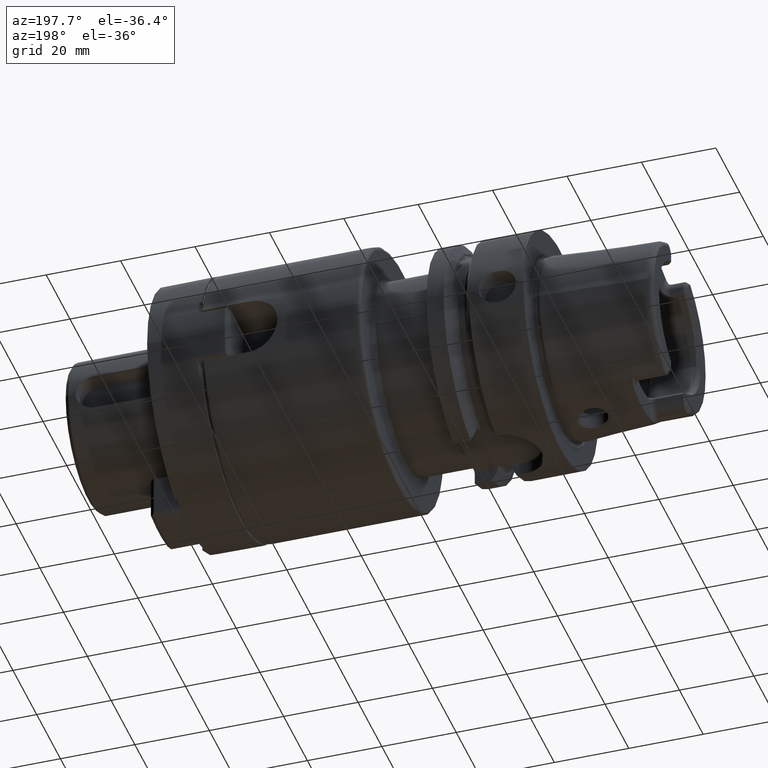
[diagram: clean part render]
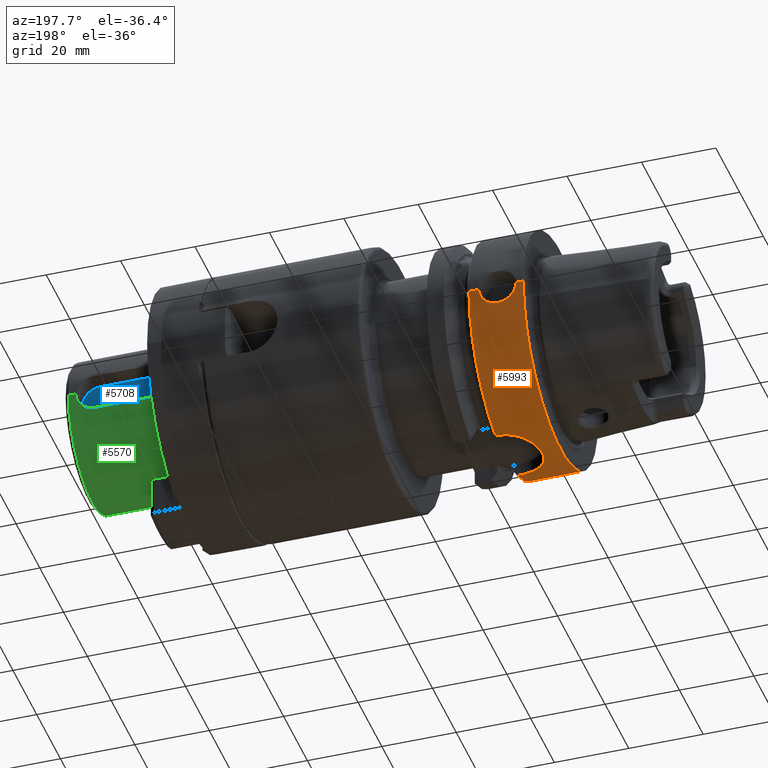
[diagram: same view with three faces highlighted in distinct colors, each labeled with its STEP entity id]
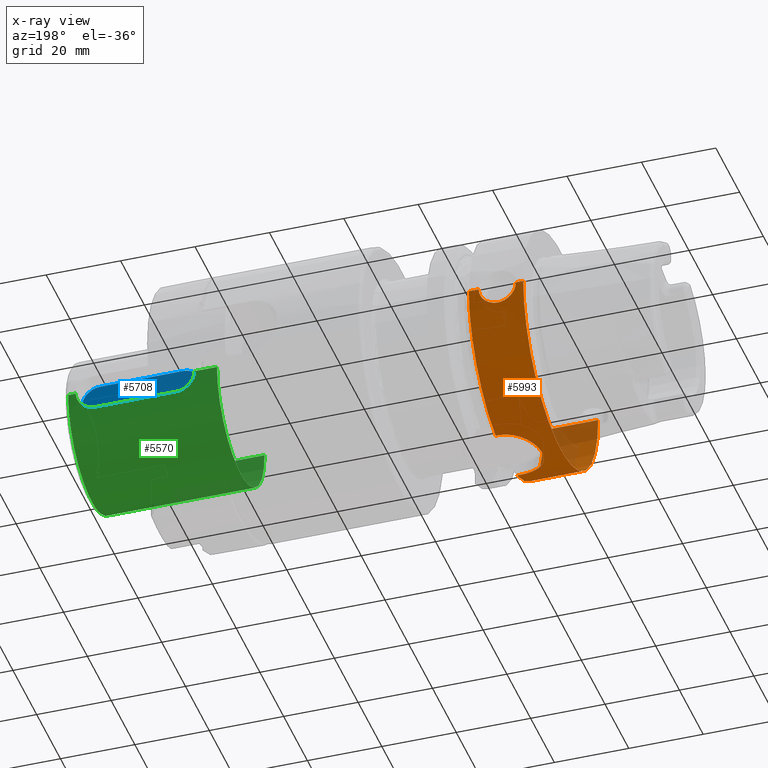
[diagram: x-ray of the same camera — body ghosted, the three highlighted faces saturated]
A machine part, auxiliary view with three faces highlighted in distinct colors.
The next image is the same camera in x-ray (body ghosted, the three faces saturated) — at least one of them is partly hidden behind the body in this view.
Their STEP definitions:

[orange] entity #5993 — the highlighted cylindrical surface (partial cylindrical patch) has radius 31.5 mm, axis along (1, 0, 0).
#1073=CARTESIAN_POINT('',(-1.421085471520E-14,0.E0,0.E0));
#1074=DIRECTION('',(-1.E0,0.E0,0.E0));
#1075=DIRECTION('',(0.E0,1.E0,0.E0));
#1076=AXIS2_PLACEMENT_3D('',#1073,#1074,#1075);
#1124=CARTESIAN_POINT('',(2.E0,3.15E1,-1.916034746595E-14));
#1126=CARTESIAN_POINT('',(1.2E1,3.15E1,0.E0));
#2103=CARTESIAN_POINT('',(1.39675E1,9.0175E0,-3.018169467989E1));
#2104=CARTESIAN_POINT('',(1.358558656281E1,9.0175E0,-3.018169467989E1));
#2105=CARTESIAN_POINT('',(1.282118465468E1,8.969691357916E0,-3.019604517684E1));
#2106=CARTESIAN_POINT('',(1.165591828593E1,8.743491566228E0,-3.026274300150E1));
#2107=CARTESIAN_POINT('',(1.052276298313E1,8.361963120688E0,-3.037104920547E1));
#2108=CARTESIAN_POINT('',(9.456122836012E0,7.837772025634E0,-3.051135915032E1));
#2109=CARTESIAN_POINT('',(8.470252282138E0,7.180724754911E0,-3.067358430769E1));
#2110=CARTESIAN_POINT('',(7.575631308163E0,6.398050863983E0,-3.084741609441E1));
#2111=CARTESIAN_POINT('',(6.786194961893E0,5.497065304782E0,-3.102161724462E1));
#2112=CARTESIAN_POINT('',(6.130229967676E0,4.511622175765E0,-3.118093411543E1));
#2113=CARTESIAN_POINT('',(5.609342792779E0,3.453031312959E0,-3.131662634576E1));
#2114=CARTESIAN_POINT('',(5.228345621102E0,2.326812347583E0,-3.142101017036E1));
#2115=CARTESIAN_POINT('',(4.999797746036E0,1.164288452435E0,-3.148568890825E1));
#2116=CARTESIAN_POINT('',(4.925086592477E0,-1.642939922344E-4,
-3.150715972921E1));
#2117=CARTESIAN_POINT('',(4.999855898167E0,-1.164866928839E0,
-3.148567217088E1));
#2118=CARTESIAN_POINT('',(5.228566513789E0,-2.327652949522E0,
-3.142094829471E1));
#2119=CARTESIAN_POINT('',(5.609617740094E0,-3.453657849156E0,
-3.131655310854E1));
#2120=CARTESIAN_POINT('',(6.130421690937E0,-4.511937610781E0,
-3.118088635565E1));
#2121=CARTESIAN_POINT('',(6.786402135999E0,-5.497346241188E0,
-3.102156844966E1));
#2122=CARTESIAN_POINT('',(7.576014991373E0,-6.398444919226E0,
-3.084733497918E1));
#2123=CARTESIAN_POINT('',(8.470738074749E0,-7.181093772441E0,
-3.067349724349E1));
#2124=CARTESIAN_POINT('',(9.456668390199E0,-7.838101066607E0,
-3.051127521442E1));
#2125=CARTESIAN_POINT('',(1.052385858790E1,-8.362443708215E0,
-3.037091729406E1));
#2126=CARTESIAN_POINT('',(1.165737665338E1,-8.743869582945E0,
-3.026263280158E1));
#2127=CARTESIAN_POINT('',(1.282210884292E1,-8.969775642486E0,
-3.019601972103E1));
#2128=CARTESIAN_POINT('',(1.358595047E1,-9.0175E0,-3.018169467989E1));
#2129=CARTESIAN_POINT('',(1.39675E1,-9.0175E0,-3.018169467989E1));
#2131=DIRECTION('',(1.E0,0.E0,0.E0));
#2132=VECTOR('',#2131,6.550009252407E-1);
#2133=CARTESIAN_POINT('',(1.39675E1,9.0175E0,-3.018169467989E1));
#2134=LINE('',#2133,#2132);
#2135=CARTESIAN_POINT('',(1.462250092524E1,0.E0,0.E0));
#2136=DIRECTION('',(1.E0,0.E0,0.E0));
#2137=DIRECTION('',(0.E0,2.862698412698E-1,-9.581490374568E-1));
#2138=AXIS2_PLACEMENT_3D('',#2135,#2136,#2137);
#2140=DIRECTION('',(-1.E0,0.E0,0.E0));
#2141=VECTOR('',#2140,2.622500925241E0);
#2142=CARTESIAN_POINT('',(1.462250092524E1,3.15E1,0.E0));
#2143=LINE('',#2142,#2141);
#2144=CARTESIAN_POINT('',(7.E0,3.110064308017E1,-5.E0));
#2145=CARTESIAN_POINT('',(7.237711971861E0,3.110064308017E1,-5.E0));
#2146=CARTESIAN_POINT('',(7.708364793932E0,3.110604176585E1,-4.966603280739E0));
#2147=CARTESIAN_POINT('',(8.409071627816E0,3.113002370339E1,-4.815048141531E0));
#2148=CARTESIAN_POINT('',(9.077383280619E0,3.116768201896E1,-4.566768250610E0));
#2149=CARTESIAN_POINT('',(9.709737219660E0,3.121653000009E1,-4.222389763166E0));
#2150=CARTESIAN_POINT('',(1.028259694179E1,3.127184472959E1,-3.794310232818E0));
#2151=CARTESIAN_POINT('',(1.079381736502E1,3.133002109497E1,-3.283144879213E0));
#2152=CARTESIAN_POINT('',(1.122187341968E1,3.138511895323E1,-2.710559209569E0));
#2153=CARTESIAN_POINT('',(1.156650397528E1,3.143365111660E1,-2.077946235915E0));
#2154=CARTESIAN_POINT('',(1.181475018474E1,3.147092885130E1,-1.410108381556E0));
#2155=CARTESIAN_POINT('',(1.196660689769E1,3.149467147123E1,
-7.086190467967E-1));
#2156=CARTESIAN_POINT('',(1.2E1,3.15E1,-2.377578867780E-1));
#2157=CARTESIAN_POINT('',(1.2E1,3.15E1,0.E0));
#2159=CARTESIAN_POINT('',(2.E0,3.15E1,-1.916034746595E-14));
#2160=CARTESIAN_POINT('',(2.E0,3.15E1,-2.377563632343E-1));
#2161=CARTESIAN_POINT('',(2.033376819090E0,3.149467390288E1,
-7.086329282889E-1));
#2162=CARTESIAN_POINT('',(2.185379667149E0,3.147090888892E1,-1.410571551366E0));
#2163=CARTESIAN_POINT('',(2.433605027219E0,3.143363519165E1,-2.078170817110E0));
#2164=CARTESIAN_POINT('',(2.778328809062E0,3.138509141893E1,-2.710884364051E0));
#2165=CARTESIAN_POINT('',(3.206392404829E0,3.132999596018E1,-3.283376693298E0));
#2166=CARTESIAN_POINT('',(3.717592314676E0,3.127182433739E1,-3.794478939285E0));
#2167=CARTESIAN_POINT('',(4.290556434518E0,3.121650481486E1,-4.222574092482E0));
#2168=CARTESIAN_POINT('',(4.922767506481E0,3.116767216438E1,-4.566833856024E0));
#2169=CARTESIAN_POINT('',(5.591173550853E0,3.113001241939E1,-4.815121163512E0));
#2170=CARTESIAN_POINT('',(6.291762024521E0,3.110604002637E1,-4.966613612597E0));
#2171=CARTESIAN_POINT('',(6.762337956938E0,3.110064308017E1,-5.E0));
#2172=CARTESIAN_POINT('',(7.E0,3.110064308017E1,-5.E0));
#2174=DIRECTION('',(-1.E0,0.E0,1.086605287208E-14));
#2175=VECTOR('',#2174,2.E0);
#2176=CARTESIAN_POINT('',(2.E0,3.15E1,-1.916034746595E-14));
#2177=LINE('',#2176,#2175);
#2178=DIRECTION('',(-1.E0,0.E0,0.E0));
#2179=VECTOR('',#2178,1.462250092524E1);
#2180=CARTESIAN_POINT('',(1.462250092524E1,-3.15E1,0.E0));
#2181=LINE('',#2180,#2179);
#2182=CARTESIAN_POINT('',(1.462250092524E1,0.E0,0.E0));
#2183=DIRECTION('',(1.E0,0.E0,0.E0));
#2184=DIRECTION('',(0.E0,-1.E0,0.E0));
#2185=AXIS2_PLACEMENT_3D('',#2182,#2183,#2184);
#2187=DIRECTION('',(1.E0,0.E0,0.E0));
#2188=VECTOR('',#2187,6.550009252407E-1);
#2189=CARTESIAN_POINT('',(1.39675E1,-9.0175E0,-3.018169467989E1));
#2190=LINE('',#2189,#2188);
#3061=CARTESIAN_POINT('',(-1.421085471520E-14,3.15E1,0.E0));
#3062=CARTESIAN_POINT('',(-1.421085471520E-14,-3.15E1,0.E0));
#3063=VERTEX_POINT('',#3061);
#3064=VERTEX_POINT('',#3062);
#3282=CARTESIAN_POINT('',(1.462250092524E1,-3.15E1,0.E0));
#3283=VERTEX_POINT('',#3282);
#3310=CARTESIAN_POINT('',(7.E0,3.110064308017E1,-5.E0));
#3311=VERTEX_POINT('',#3310);
#3312=VERTEX_POINT('',#1124);
#3313=VERTEX_POINT('',#1126);
#3314=CARTESIAN_POINT('',(1.462250092524E1,3.15E1,0.E0));
#3315=VERTEX_POINT('',#3314);
#3388=CARTESIAN_POINT('',(1.39675E1,-9.0175E0,-3.018169467989E1));
#3389=VERTEX_POINT('',#3388);
#3390=CARTESIAN_POINT('',(1.39675E1,9.0175E0,-3.018169467989E1));
#3391=VERTEX_POINT('',#3390);
#3420=CARTESIAN_POINT('',(1.462250092524E1,9.0175E0,-3.018169467989E1));
#3421=VERTEX_POINT('',#3420);
#3422=CARTESIAN_POINT('',(1.462250092524E1,-9.0175E0,-3.018169467989E1));
#3423=VERTEX_POINT('',#3422);
#5971=CARTESIAN_POINT('',(-3.49E1,0.E0,0.E0));
#5972=DIRECTION('',(1.E0,0.E0,0.E0));
#5973=DIRECTION('',(0.E0,-1.E0,0.E0));
#5974=AXIS2_PLACEMENT_3D('',#5971,#5972,#5973);
#5975=CYLINDRICAL_SURFACE('',#5974,3.15E1);
#5977=ORIENTED_EDGE('',*,*,#5976,.F.);
#5978=ORIENTED_EDGE('',*,*,#5018,.T.);
#5979=ORIENTED_EDGE('',*,*,#5895,.T.);
#5980=ORIENTED_EDGE('',*,*,#4896,.T.);
#5982=ORIENTED_EDGE('',*,*,#5981,.F.);
#5984=ORIENTED_EDGE('',*,*,#5983,.F.);
#5985=ORIENTED_EDGE('',*,*,#4890,.T.);
#5986=ORIENTED_EDGE('',*,*,#4865,.T.);
#5987=ORIENTED_EDGE('',*,*,#4887,.F.);
#5988=ORIENTED_EDGE('',*,*,#5910,.T.);
#5990=ORIENTED_EDGE('',*,*,#5989,.F.);
#5991=EDGE_LOOP('',(#5977,#5978,#5979,#5980,#5982,#5984,#5985,#5986,#5987,#5988,
#5990));
#5992=FACE_OUTER_BOUND('',#5991,.F.);
#5993=ADVANCED_FACE('',(#5992),#5975,.T.);
#1077=CIRCLE('',#1076,3.15E1);
#2130=B_SPLINE_CURVE_WITH_KNOTS('',3,(#2103,#2104,#2105,#2106,#2107,#2108,#2109,
#2110,#2111,#2112,#2113,#2114,#2115,#2116,#2117,#2118,#2119,#2120,#2121,#2122,
#2123,#2124,#2125,#2126,#2127,#2128,#2129),.UNSPECIFIED.,.F.,.F.,(4,1,1,1,1,1,1,
1,1,1,1,1,1,1,1,1,1,1,1,1,1,1,1,1,4),(0.E0,4.166666666667E-2,8.333333333333E-2,
1.25E-1,1.666666666667E-1,2.083333333333E-1,2.5E-1,2.916666666667E-1,
3.333333333333E-1,3.75E-1,4.166666666667E-1,4.583333333333E-1,5.E-1,
5.416666666667E-1,5.833333333333E-1,6.25E-1,6.666666666667E-1,7.083333333333E-1,
7.5E-1,7.916666666667E-1,8.333333333333E-1,8.75E-1,9.166666666667E-1,
9.583333333333E-1,1.E0),.UNSPECIFIED.);
#2139=CIRCLE('',#2138,3.15E1);
#2158=B_SPLINE_CURVE_WITH_KNOTS('',3,(#2144,#2145,#2146,#2147,#2148,#2149,#2150,
#2151,#2152,#2153,#2154,#2155,#2156,#2157),.UNSPECIFIED.,.F.,.F.,(4,1,1,1,1,1,1,
1,1,1,1,4),(0.E0,9.090909090909E-2,1.818181818182E-1,2.727272727273E-1,
3.636363636364E-1,4.545454545455E-1,5.454545454545E-1,6.363636363636E-1,
7.272727272727E-1,8.181818181818E-1,9.090909090909E-1,1.E0),.UNSPECIFIED.);
#2173=B_SPLINE_CURVE_WITH_KNOTS('',3,(#2159,#2160,#2161,#2162,#2163,#2164,#2165,
#2166,#2167,#2168,#2169,#2170,#2171,#2172),.UNSPECIFIED.,.F.,.F.,(4,1,1,1,1,1,1,
1,1,1,1,4),(0.E0,9.090909090909E-2,1.818181818182E-1,2.727272727273E-1,
3.636363636364E-1,4.545454545455E-1,5.454545454545E-1,6.363636363636E-1,
7.272727272727E-1,8.181818181818E-1,9.090909090909E-1,1.E0),.UNSPECIFIED.);
#2186=CIRCLE('',#2185,3.15E1);
#4865=EDGE_CURVE('',#3063,#3064,#1077,.T.);
#4887=EDGE_CURVE('',#3283,#3064,#2181,.T.);
#4890=EDGE_CURVE('',#3312,#3063,#2177,.T.);
#4896=EDGE_CURVE('',#3315,#3313,#2143,.T.);
#5018=EDGE_CURVE('',#3391,#3421,#2134,.T.);
#5895=EDGE_CURVE('',#3421,#3315,#2139,.T.);
#5910=EDGE_CURVE('',#3283,#3423,#2186,.T.);
#5976=EDGE_CURVE('',#3391,#3389,#2130,.T.);
#5981=EDGE_CURVE('',#3311,#3313,#2158,.T.);
#5983=EDGE_CURVE('',#3312,#3311,#2173,.T.);
#5989=EDGE_CURVE('',#3389,#3423,#2190,.T.);

[blue] entity #5708 — the highlighted planar face has unit normal (0, 1, 0).
#1928=CARTESIAN_POINT('',(9.7E1,1.45E1,0.E0));
#1929=DIRECTION('',(0.E0,1.E0,0.E0));
#1930=DIRECTION('',(0.E0,0.E0,-1.E0));
#1931=AXIS2_PLACEMENT_3D('',#1928,#1929,#1930);
#1933=DIRECTION('',(-1.E0,0.E0,0.E0));
#1934=VECTOR('',#1933,2.2E1);
#1935=CARTESIAN_POINT('',(1.19E2,1.45E1,-5.E0));
#1936=LINE('',#1935,#1934);
#1937=CARTESIAN_POINT('',(1.19E2,1.45E1,0.E0));
#1938=DIRECTION('',(0.E0,1.E0,0.E0));
#1939=DIRECTION('',(0.E0,0.E0,1.E0));
#1940=AXIS2_PLACEMENT_3D('',#1937,#1938,#1939);
#1942=DIRECTION('',(1.E0,0.E0,0.E0));
#1943=VECTOR('',#1942,2.2E1);
#1944=CARTESIAN_POINT('',(9.7E1,1.45E1,5.E0));
#1945=LINE('',#1944,#1943);
#3533=CARTESIAN_POINT('',(9.7E1,1.45E1,-5.E0));
#3534=CARTESIAN_POINT('',(9.7E1,1.45E1,5.E0));
#3535=VERTEX_POINT('',#3533);
#3536=VERTEX_POINT('',#3534);
#3537=CARTESIAN_POINT('',(1.19E2,1.45E1,5.E0));
#3538=VERTEX_POINT('',#3537);
#3539=CARTESIAN_POINT('',(1.19E2,1.45E1,-5.E0));
#3540=VERTEX_POINT('',#3539);
#5696=CARTESIAN_POINT('',(1.27E2,1.45E1,0.E0));
#5697=DIRECTION('',(0.E0,1.E0,0.E0));
#5698=DIRECTION('',(1.E0,0.E0,0.E0));
#5699=AXIS2_PLACEMENT_3D('',#5696,#5697,#5698);
#5700=PLANE('',#5699);
#5701=ORIENTED_EDGE('',*,*,#5545,.F.);
#5703=ORIENTED_EDGE('',*,*,#5702,.F.);
#5704=ORIENTED_EDGE('',*,*,#5675,.F.);
#5705=ORIENTED_EDGE('',*,*,#5690,.F.);
#5706=EDGE_LOOP('',(#5701,#5703,#5704,#5705));
#5707=FACE_OUTER_BOUND('',#5706,.F.);
#5708=ADVANCED_FACE('',(#5707),#5700,.T.);
#1932=CIRCLE('',#1931,5.E0);
#1941=CIRCLE('',#1940,5.E0);
#5545=EDGE_CURVE('',#3535,#3536,#1932,.T.);
#5675=EDGE_CURVE('',#3538,#3540,#1941,.T.);
#5690=EDGE_CURVE('',#3536,#3538,#1945,.T.);
#5702=EDGE_CURVE('',#3540,#3535,#1936,.T.);

[green] entity #5570 — the highlighted cylindrical surface (partial cylindrical patch) has radius 20 mm, axis along (1, 0, 0).
#1739=CARTESIAN_POINT('',(8.6E1,0.E0,0.E0));
#1740=DIRECTION('',(-1.E0,0.E0,0.E0));
#1741=DIRECTION('',(0.E0,1.E0,0.E0));
#1742=AXIS2_PLACEMENT_3D('',#1739,#1740,#1741);
#1782=CARTESIAN_POINT('',(9.2E1,2.E1,-1.337421906266E-14));
#1788=CARTESIAN_POINT('',(1.24E2,2.E1,0.E0));
#1813=CARTESIAN_POINT('',(9.2E1,2.E1,-1.337421906266E-14));
#1814=CARTESIAN_POINT('',(9.2E1,2.E1,-2.181511887097E-1));
#1815=CARTESIAN_POINT('',(9.202813662263E1,1.999293636963E1,
-6.534226888372E-1));
#1816=CARTESIAN_POINT('',(9.215959161060E1,1.996046555481E1,-1.312317379368E0));
#1817=CARTESIAN_POINT('',(9.237870894891E1,1.990817509776E1,-1.947164651061E0));
#1818=CARTESIAN_POINT('',(9.267516641552E1,1.984110452048E1,-2.537539307347E0));
#1819=CARTESIAN_POINT('',(9.304316097724E1,1.976371709740E1,-3.080188970094E0));
#1820=CARTESIAN_POINT('',(9.348253626189E1,1.967996264484E1,-3.573945785072E0));
#1821=CARTESIAN_POINT('',(9.398101337034E1,1.959657744564E1,-4.003441536352E0));
#1822=CARTESIAN_POINT('',(9.452283011594E1,1.952006124546E1,-4.359190444875E0));
#1823=CARTESIAN_POINT('',(9.510383195596E1,1.945449729820E1,-4.641474914584E0));
#1824=CARTESIAN_POINT('',(9.571651045816E1,1.940404372300E1,-4.846900297894E0));
#1825=CARTESIAN_POINT('',(9.635298198814E1,1.937218307976E1,-4.971983470601E0));
#1826=CARTESIAN_POINT('',(9.678283103346E1,1.936491673104E1,-5.E0));
#1827=CARTESIAN_POINT('',(9.7E1,1.936491673104E1,-5.E0));
#1829=DIRECTION('',(-1.E0,0.E0,0.E0));
#1830=VECTOR('',#1829,6.E0);
#1831=CARTESIAN_POINT('',(9.2E1,2.E1,-1.337421906266E-14));
#1832=LINE('',#1831,#1830);
#1833=DIRECTION('',(-1.E0,-3.854694341498E-14,-5.835960776895E-13));
#1834=VECTOR('',#1833,4.E1);
#1835=CARTESIAN_POINT('',(1.26E2,-2.E1,2.334221024518E-11));
#1836=LINE('',#1835,#1834);
#1837=CARTESIAN_POINT('',(1.26E2,0.E0,0.E0));
#1838=DIRECTION('',(-1.E0,0.E0,0.E0));
#1839=DIRECTION('',(0.E0,1.E0,0.E0));
#1840=AXIS2_PLACEMENT_3D('',#1837,#1838,#1839);
#1842=DIRECTION('',(-1.E0,7.709388682991E-13,1.167074520258E-11));
#1843=VECTOR('',#1842,2.000000000002E0);
#1844=CARTESIAN_POINT('',(1.26E2,2.E1,-2.334393279161E-11));
#1845=LINE('',#1844,#1843);
#1846=CARTESIAN_POINT('',(1.19E2,1.936491673104E1,-5.E0));
#1847=CARTESIAN_POINT('',(1.192170195285E2,1.936491673104E1,-5.E0));
#1848=CARTESIAN_POINT('',(1.196466137204E2,1.937217328077E1,-4.972020929162E0));
#1849=CARTESIAN_POINT('',(1.202828219848E2,1.940400117755E1,-4.847069478080E0));
#1850=CARTESIAN_POINT('',(1.208953952376E2,1.945442368586E1,-4.641778924215E0));
#1851=CARTESIAN_POINT('',(1.214762964568E2,1.951994815985E1,-4.359697112180E0));
#1852=CARTESIAN_POINT('',(1.220186432229E2,1.959652006998E1,-4.003730423068E0));
#1853=CARTESIAN_POINT('',(1.225174137457E2,1.967995224657E1,-3.574016773213E0));
#1854=CARTESIAN_POINT('',(1.229569068211E2,1.976373130375E1,-3.080084274639E0));
#1855=CARTESIAN_POINT('',(1.233247486997E2,1.984108530429E1,-2.537712050197E0));
#1856=CARTESIAN_POINT('',(1.236216125096E2,1.990824856437E1,-1.946493606948E0));
#1857=CARTESIAN_POINT('',(1.238406477907E2,1.996052437046E1,-1.311406282710E0));
#1858=CARTESIAN_POINT('',(1.239719293970E2,1.999295289918E1,
-6.527749946423E-1));
#1859=CARTESIAN_POINT('',(1.24E2,2.E1,-2.178930203253E-1));
#1860=CARTESIAN_POINT('',(1.24E2,2.E1,0.E0));
#1862=DIRECTION('',(1.E0,0.E0,0.E0));
#1863=VECTOR('',#1862,2.2E1);
#1864=CARTESIAN_POINT('',(9.7E1,1.936491673104E1,-5.E0));
#1865=LINE('',#1864,#1863);
#3471=CARTESIAN_POINT('',(8.6E1,2.E1,0.E0));
#3472=CARTESIAN_POINT('',(8.6E1,-2.E1,0.E0));
#3473=VERTEX_POINT('',#3471);
#3474=VERTEX_POINT('',#3472);
#3475=CARTESIAN_POINT('',(1.26E2,2.E1,0.E0));
#3476=CARTESIAN_POINT('',(1.26E2,-2.E1,0.E0));
#3477=VERTEX_POINT('',#3475);
#3478=VERTEX_POINT('',#3476);
#3542=VERTEX_POINT('',#1782);
#3545=VERTEX_POINT('',#1788);
#3546=VERTEX_POINT('',#1827);
#3547=VERTEX_POINT('',#1846);
#5552=CARTESIAN_POINT('',(2.095E1,0.E0,0.E0));
#5553=DIRECTION('',(1.E0,0.E0,0.E0));
#5554=DIRECTION('',(0.E0,-1.E0,0.E0));
#5555=AXIS2_PLACEMENT_3D('',#5552,#5553,#5554);
#5556=CYLINDRICAL_SURFACE('',#5555,2.E1);
#5557=ORIENTED_EDGE('',*,*,#5541,.F.);
#5558=ORIENTED_EDGE('',*,*,#5530,.T.);
#5559=ORIENTED_EDGE('',*,*,#5507,.T.);
#5560=ORIENTED_EDGE('',*,*,#5527,.F.);
#5562=ORIENTED_EDGE('',*,*,#5561,.F.);
#5563=ORIENTED_EDGE('',*,*,#5523,.T.);
#5565=ORIENTED_EDGE('',*,*,#5564,.F.);
#5567=ORIENTED_EDGE('',*,*,#5566,.F.);
#5568=EDGE_LOOP('',(#5557,#5558,#5559,#5560,#5562,#5563,#5565,#5567));
#5569=FACE_OUTER_BOUND('',#5568,.F.);
#5570=ADVANCED_FACE('',(#5569),#5556,.T.);
#1743=CIRCLE('',#1742,2.E1);
#1828=B_SPLINE_CURVE_WITH_KNOTS('',3,(#1813,#1814,#1815,#1816,#1817,#1818,#1819,
#1820,#1821,#1822,#1823,#1824,#1825,#1826,#1827),.UNSPECIFIED.,.F.,.F.,(4,1,1,1,
1,1,1,1,1,1,1,1,4),(0.E0,8.333333333333E-2,1.666666666667E-1,2.5E-1,
3.333333333333E-1,4.166666666667E-1,5.E-1,5.833333333333E-1,6.666666666667E-1,
7.5E-1,8.333333333333E-1,9.166666666667E-1,1.E0),.UNSPECIFIED.);
#1841=CIRCLE('',#1840,2.E1);
#1861=B_SPLINE_CURVE_WITH_KNOTS('',3,(#1846,#1847,#1848,#1849,#1850,#1851,#1852,
#1853,#1854,#1855,#1856,#1857,#1858,#1859,#1860),.UNSPECIFIED.,.F.,.F.,(4,1,1,1,
1,1,1,1,1,1,1,1,4),(0.E0,8.333333333333E-2,1.666666666667E-1,2.5E-1,
3.333333333333E-1,4.166666666667E-1,5.E-1,5.833333333333E-1,6.666666666667E-1,
7.5E-1,8.333333333333E-1,9.166666666667E-1,1.E0),.UNSPECIFIED.);
#5507=EDGE_CURVE('',#3473,#3474,#1743,.T.);
#5523=EDGE_CURVE('',#3477,#3545,#1845,.T.);
#5527=EDGE_CURVE('',#3478,#3474,#1836,.T.);
#5530=EDGE_CURVE('',#3542,#3473,#1832,.T.);
#5541=EDGE_CURVE('',#3542,#3546,#1828,.T.);
#5561=EDGE_CURVE('',#3477,#3478,#1841,.T.);
#5564=EDGE_CURVE('',#3547,#3545,#1861,.T.);
#5566=EDGE_CURVE('',#3546,#3547,#1865,.T.);